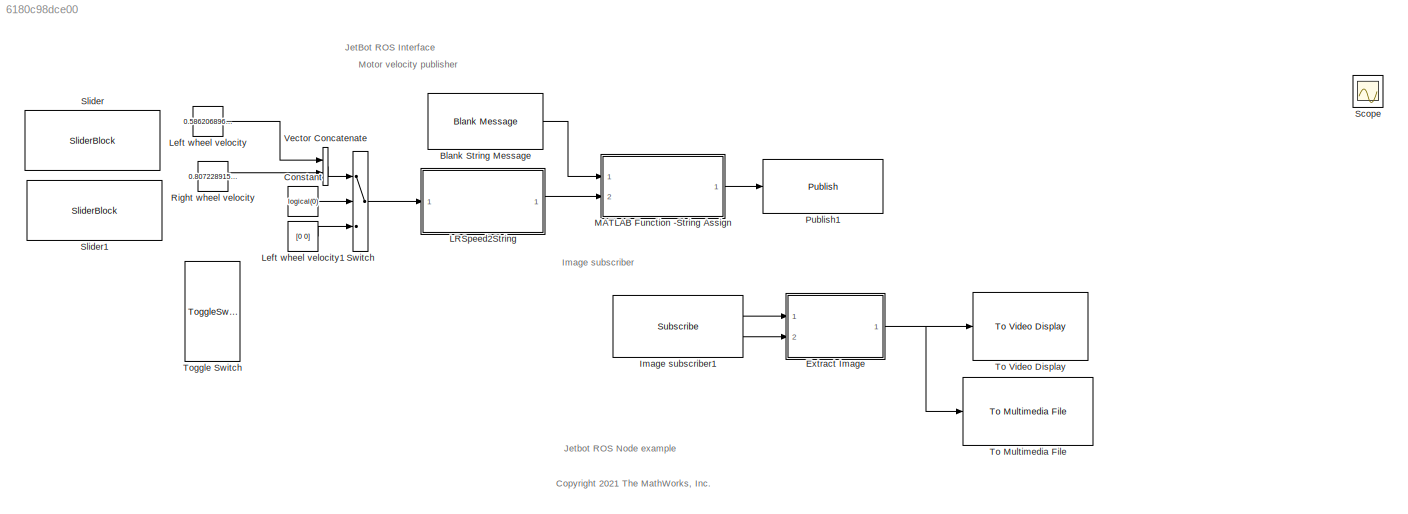
MODEL slx_6180c98dce00
KIND model
CONFIG AbsTol = auto
CONFIG EnableMultiTasking = off
CONFIG FixedStep = 0.05
CONFIG MaxStep = auto
CONFIG MinStep = auto
CONFIG RelTol = 1e-3
CONFIG SampleTimeConstraint = Unconstrained
CONFIG SolverName = FixedStepDiscrete
CONFIG StartTime = 0.0
CONFIG StopTime = inf
WORKSPACE source: mxarray member
WORKSPACE SL_ROS_VariableLengthArrays_MaxSizes: object (value not decoded)
BLOCK [Reference] Blank String Message  REF=robotlib/Blank Message
  Ports = [0, 1]
  SourceBlock = robotlib/Blank Message
  SourceProductBaseCode = RR
  SourceType = ROS Blank Message
BLOCK [Constant] Constant
  Value = logical(0)
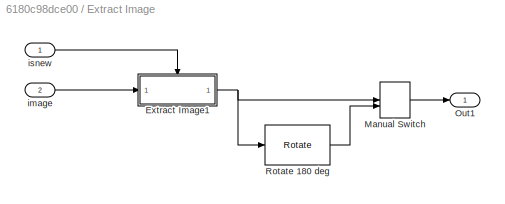
BLOCK [SubSystem] Extract Image
  Ports = [2, 1]
  RequestExecContextInheritance = off
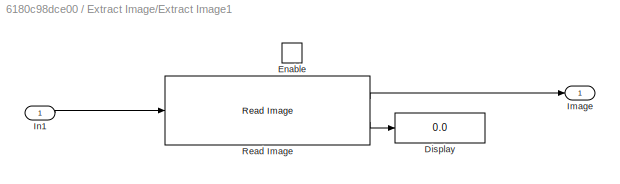
BLOCK [SubSystem] Extract Image/Extract Image1
  Ports = [1, 1, 1]
  RequestExecContextInheritance = off
BLOCK [Display] Extract Image/Extract Image1/Display
  Decimation = 1
  Ports = [1]
BLOCK [EnablePort] Extract Image/Extract Image1/Enable
  Ports = []
BLOCK [Outport] Extract Image/Extract Image1/Image
  VectorParamsAs1DForOutWhenUnconnected = off
BLOCK [Inport] Extract Image/Extract Image1/In1
BLOCK [Reference] Extract Image/Extract Image1/Read Image  REF=robotlib/Read Image
  Ports = [1, 2]
  SourceBlock = robotlib/Read Image
  SourceProductBaseCode = RR
  SourceType = ros.slros.internal.block.ReadImage
BLOCK [ManualSwitch] Extract Image/Manual Switch
BLOCK [Outport] Extract Image/Out1
BLOCK [Reference] Extract Image/Rotate 180 deg  REF=visiongeotforms/Rotate
  Ports = [1, 1]
  SourceBlock = visiongeotforms/Rotate
  SourceProductBaseCode = VP
  SourceType = Rotate
BLOCK [Inport] Extract Image/image
  Port = 2
BLOCK [Inport] Extract Image/isnew
BLOCK [Reference] Image subscriber1  REF=robotlib/Subscribe
  Ports = [0, 2]
  SourceBlock = robotlib/Subscribe
  SourceProductBaseCode = RR
  SourceType = ROS Subscribe
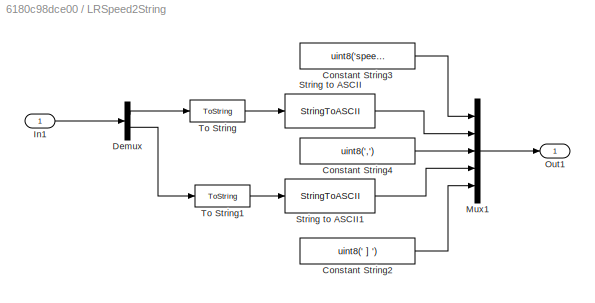
BLOCK [SubSystem] LRSpeed2String
  Ports = [1, 1]
  RequestExecContextInheritance = off
BLOCK [Constant] LRSpeed2String/Constant String2
  Value = uint8(' ] ')
BLOCK [Constant] LRSpeed2String/Constant String3
  Value = uint8('speed[ ')
BLOCK [Constant] LRSpeed2String/Constant String4
  Value = uint8(',')
BLOCK [Demux] LRSpeed2String/Demux
  Outputs = 2
  Ports = [1, 2]
BLOCK [Inport] LRSpeed2String/In1
BLOCK [Mux] LRSpeed2String/Mux1
  DisplayOption = bar
  Inputs = 5
  Ports = [5, 1]
BLOCK [Outport] LRSpeed2String/Out1
  VectorParamsAs1DForOutWhenUnconnected = off
BLOCK [StringToASCII] LRSpeed2String/String to ASCII
  OutputVectorSize = 4
BLOCK [StringToASCII] LRSpeed2String/String to ASCII1
  OutputVectorSize = 4
BLOCK [ToString] LRSpeed2String/To String
BLOCK [ToString] LRSpeed2String/To String1
BLOCK [Constant] Left wheel velocity
  SampleTime = 0.1
  Value = 0.5862068965517242
BLOCK [Constant] Left wheel velocity1
  SampleTime = 0.1
  Value = [0 0]
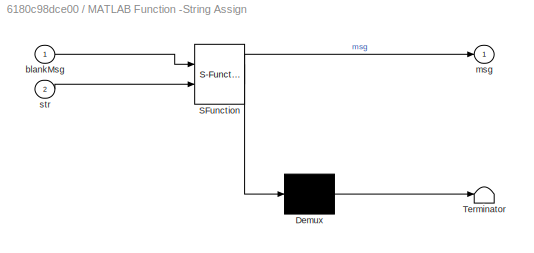
BLOCK [SubSystem] MATLAB Function -String Assign
  ErrorFcn = Stateflow.Translate.translate
  PermitHierarchicalResolution = ExplicitOnly
  Ports = [2, 1]
  RequestExecContextInheritance = off
  SFBlockType = MATLAB Function
  TreatAsAtomicUnit = on
BLOCK [Demux] MATLAB Function -String Assign/ Demux 
  Outputs = 1
  Ports = [1, 1]
BLOCK [S-Function] MATLAB Function -String Assign/ SFunction 
  EnableBusSupport = on
  FunctionName = sf_sfun
  PortCounts = [2 2]
  Ports = [2, 2]
  SFcnIsStateOwnerBlock = off
  SFunctionDeploymentMode = off
  Tag = Stateflow S-Function 2
BLOCK [Terminator] MATLAB Function -String Assign/ Terminator 
BLOCK [Inport] MATLAB Function -String Assign/blankMsg
BLOCK [Outport] MATLAB Function -String Assign/msg
  VectorParamsAs1DForOutWhenUnconnected = off
BLOCK [Inport] MATLAB Function -String Assign/str
  Port = 2
BLOCK [Reference] Publish1  REF=robotlib/Publish
  Ports = [1]
  SourceBlock = robotlib/Publish
  SourceProductBaseCode = RR
  SourceType = ROS Publish
BLOCK [Constant] Right wheel velocity
  SampleTime = 0.1
  Value = 0.8072289156626506
BLOCK [Scope] Scope
  Floating = off
  IOType = viewer
  NumInputPorts = 1
  Ports = []
  ScopeSpecificationString = Simulink.scopes.TimeScopeBlockCfg('CurrentConfiguration', extmgr.ConfigurationSet(extmgr.Configuration('Core','General UI',true),extmgr.Configuration('Core','Source UI',true),extmgr.Configuration('Sources','WiredSimulink',true),extmgr.Configuration('Visuals','Time Domain',true,'SerializedDisplays',{struct('MinYLimReal','-1.00000','MaxYLimReal','1.00000','YLabelReal','','MinYLimMag','0.00000','MaxY...<+1345ch>
BLOCK [SliderBlock] Slider
  ScaleMax = 1
  ScaleMin = -1
BLOCK [SliderBlock] Slider1
  ScaleMax = 1
  ScaleMin = -1
BLOCK [Switch] Switch
  Criteria = u2 > Threshold
  InputSameDT = off
  SaturateOnIntegerOverflow = off
BLOCK [Reference] To Multimedia File  REF=dspvision/To Multimedia File
  Commented = on
  Ports = [1]
  SourceBlock = dspvision/To Multimedia File
  SourceProductBaseCode = DS,HW,VP
  SourceType = To Multimedia File
BLOCK [Reference] To Video Display  REF=visionsinks/To Video Display
  Ports = [1]
  SourceBlock = visionsinks/To Video Display
  SourceProductBaseCode = VP
  SourceType = To Video Display
BLOCK [ToggleSwitchBlock] Toggle Switch
BLOCK [Concatenate] Vector Concatenate
  Ports = [2, 1]
ANNOTATION (root): Jetbot ROS Node example
ANNOTATION (root): <copyright redacted>
ANNOTATION (root): Image subscriber
ANNOTATION (root): JetBot ROS Interface
ANNOTATION (root): Motor velocity publisher
LINE Blank String Message:1 -> MATLAB Function -String Assign:1
LINE Constant:1 -> Switch:2
LINE Extract Image/Extract Image1/In1:1 -> Extract Image/Extract Image1/Read Image:1
LINE Extract Image/Extract Image1/Read Image:1 -> Extract Image/Extract Image1/Image:1
LINE Extract Image/Extract Image1/Read Image:2 -> Extract Image/Extract Image1/Display:1
NET Extract Image/Extract Image1:1 -> Extract Image/Manual Switch:1, Extract Image/Rotate 180 deg:1
LINE Extract Image/Manual Switch:1 -> Extract Image/Out1:1
LINE Extract Image/Rotate 180 deg:1 -> Extract Image/Manual Switch:2
LINE Extract Image/image:1 -> Extract Image/Extract Image1:1
LINE Extract Image/isnew:1 -> Extract Image/Extract Image1:enable
NET Extract Image:1 -> To Multimedia File:1, To Video Display:1
LINE Image subscriber1:1 -> Extract Image:1
LINE Image subscriber1:2 -> Extract Image:2
LINE LRSpeed2String/Constant String2:1 -> LRSpeed2String/Mux1:5
LINE LRSpeed2String/Constant String3:1 -> LRSpeed2String/Mux1:1
LINE LRSpeed2String/Constant String4:1 -> LRSpeed2String/Mux1:3
LINE LRSpeed2String/Demux:1 -> LRSpeed2String/To String:1
LINE LRSpeed2String/Demux:2 -> LRSpeed2String/To String1:1
LINE LRSpeed2String/In1:1 -> LRSpeed2String/Demux:1
LINE LRSpeed2String/Mux1:1 -> LRSpeed2String/Out1:1
LINE LRSpeed2String/String to ASCII1:1 -> LRSpeed2String/Mux1:4
LINE LRSpeed2String/String to ASCII:1 -> LRSpeed2String/Mux1:2
LINE LRSpeed2String/To String1:1 -> LRSpeed2String/String to ASCII1:1
LINE LRSpeed2String/To String:1 -> LRSpeed2String/String to ASCII:1
LINE LRSpeed2String:1 -> MATLAB Function -String Assign:2
LINE Left wheel velocity1:1 -> Switch:3
LINE Left wheel velocity:1 -> Vector Concatenate:1
LINE MATLAB Function -String Assign:1 -> Publish1:1
LINE Right wheel velocity:1 -> Vector Concatenate:2
LINE Switch:1 -> LRSpeed2String:1
LINE Vector Concatenate:1 -> Switch:1
note: NET lines group one-source signal fan-out (src -> all destinations, sorted); 1:1 wires keep LINE
CHART MATLAB Function -String Assign states=1 transitions=1
  STATE_LABEL 'eML_blk_kernel()'
  STATE_LABEL "SCRIPT:\nfunction msg = assignStringInput(blankMsg, str)\n% assignStringInput - Assign a string in a ROS message to specified input string\n%\n% MSG = assignStringInput(blankMsg, STR) assigns the input string, STR, to\n%  a string field in the ROS message, blankMsg, and outputs the updated\n%  ROS message.\n%\n%  Inputs\n%    blankMsg: A bus for a 'std_msgs/String' message. This is \n%        used to initia...<+1092ch>"
CHART  states=0 transitions=0
